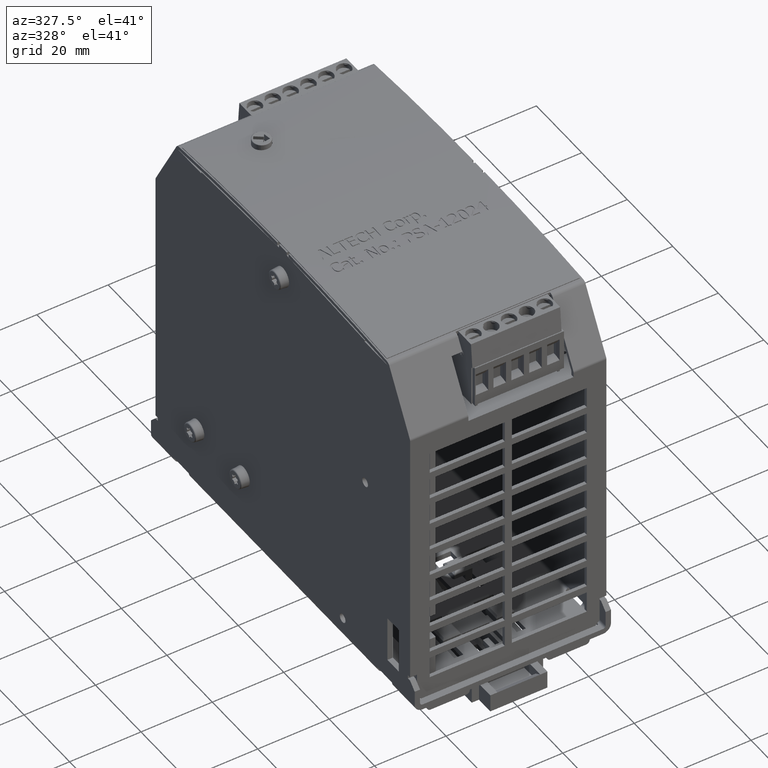
[diagram: clean part render]
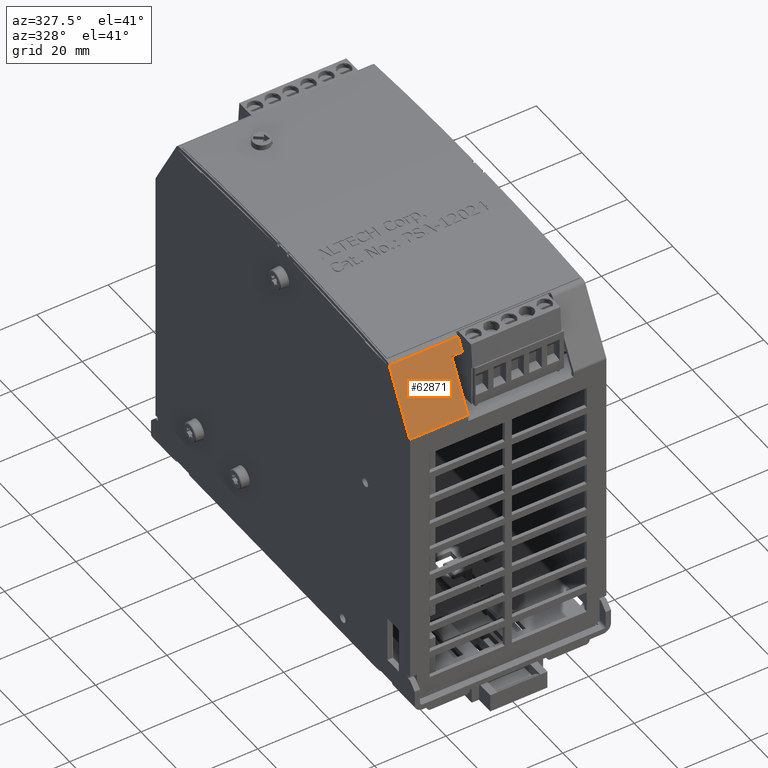
[diagram: same view with one face highlighted and labeled with its STEP entity id]
A machine part, auxiliary view. The second image highlights one B-rep face of the part: STEP entity #62871.
In plain terms, the highlighted planar face has unit normal (-0, -0.8757, 0.4829).
Its self-contained STEP definition (entity closure, byte-faithful):
#61430=CARTESIAN_POINT('',(-0.322834645669302,-1.841561223489085,3.956021143396017));
#61431=VERTEX_POINT('',#61430);
#61487=CARTESIAN_POINT('',(-0.322834645669302,-1.914639180350139,3.823517155680987));
#61488=VERTEX_POINT('',#61487);
#61489=CARTESIAN_POINT('',(-0.322834645669302,-1.914639180350139,3.823517155680987));
#61490=DIRECTION('',(0.0,0.482937042258638,0.875655076622341));
#61491=VECTOR('',#61490,0.151319841856152);
#61492=LINE('',#61489,#61491);
#61493=EDGE_CURVE('',#61488,#61431,#61492,.T.);
#61540=CARTESIAN_POINT('',(-0.440944881889774,-2.199339393082081,3.307302484243865));
#61541=VERTEX_POINT('',#61540);
#61849=CARTESIAN_POINT('',(-0.440944881889775,-1.914639180350139,3.823517155680991));
#61850=VERTEX_POINT('',#61849);
#61851=CARTESIAN_POINT('',(-0.440944881889775,-1.914639180350139,3.823517155680991));
#61852=DIRECTION('',(1.0,0.0,0.0));
#61853=VECTOR('',#61852,0.118110236220473);
#61854=LINE('',#61851,#61853);
#61855=EDGE_CURVE('',#61850,#61488,#61854,.T.);
#61879=CARTESIAN_POINT('',(-0.440944881889774,-2.199339393082081,3.307302484243865));
#61880=DIRECTION('',(-2.824907E-016,0.482937042258379,0.875655076622484));
#61881=VECTOR('',#61880,0.589518276338023);
#61882=LINE('',#61879,#61881);
#61883=EDGE_CURVE('',#61541,#61850,#61882,.T.);
#62827=CARTESIAN_POINT('',(-1.082677165354348,-2.199339393082081,3.307302484243865));
#62828=VERTEX_POINT('',#62827);
#62829=CARTESIAN_POINT('',(-1.082677165354348,-2.199339393082081,3.307302484243865));
#62830=DIRECTION('',(1.0,0.0,0.0));
#62831=VECTOR('',#62830,0.641732283464574);
#62832=LINE('',#62829,#62831);
#62833=EDGE_CURVE('',#62828,#61541,#62832,.T.);
#62846=CARTESIAN_POINT('',(1.082677165354314,-2.199339393082207,3.307302484243937));
#62847=DIRECTION('',(-1.851262E-017,-0.875655076622365,0.482937042258596));
#62848=DIRECTION('',(1.0,0.0,0.0));
#62849=AXIS2_PLACEMENT_3D('',#62846,#62847,#62848);
#62850=PLANE('',#62849);
#62851=ORIENTED_EDGE('',*,*,#61883,.T.);
#62852=ORIENTED_EDGE('',*,*,#61855,.T.);
#62853=ORIENTED_EDGE('',*,*,#61493,.T.);
#62854=CARTESIAN_POINT('',(-1.082677165354348,-1.841561223489084,3.956021143396015));
#62855=VERTEX_POINT('',#62854);
#62856=CARTESIAN_POINT('',(-1.082677165354348,-1.841561223489084,3.956021143396015));
#62857=DIRECTION('',(1.0,0.0,0.0));
#62858=VECTOR('',#62857,0.759842519685046);
#62859=LINE('',#62856,#62858);
#62860=EDGE_CURVE('',#62855,#61431,#62859,.T.);
#62861=ORIENTED_EDGE('',*,*,#62860,.F.);
#62862=CARTESIAN_POINT('',(-1.082677165354348,-2.199339393082081,3.307302484243865));
#62863=DIRECTION('',(0.0,0.482937042258435,0.875655076622453));
#62864=VECTOR('',#62863,0.740838118194171);
#62865=LINE('',#62862,#62864);
#62866=EDGE_CURVE('',#62828,#62855,#62865,.T.);
#62867=ORIENTED_EDGE('',*,*,#62866,.F.);
#62868=ORIENTED_EDGE('',*,*,#62833,.T.);
#62869=EDGE_LOOP('',(#62851,#62852,#62853,#62861,#62867,#62868));
#62870=FACE_OUTER_BOUND('',#62869,.T.);
#62871=ADVANCED_FACE('',(#62870),#62850,.T.);